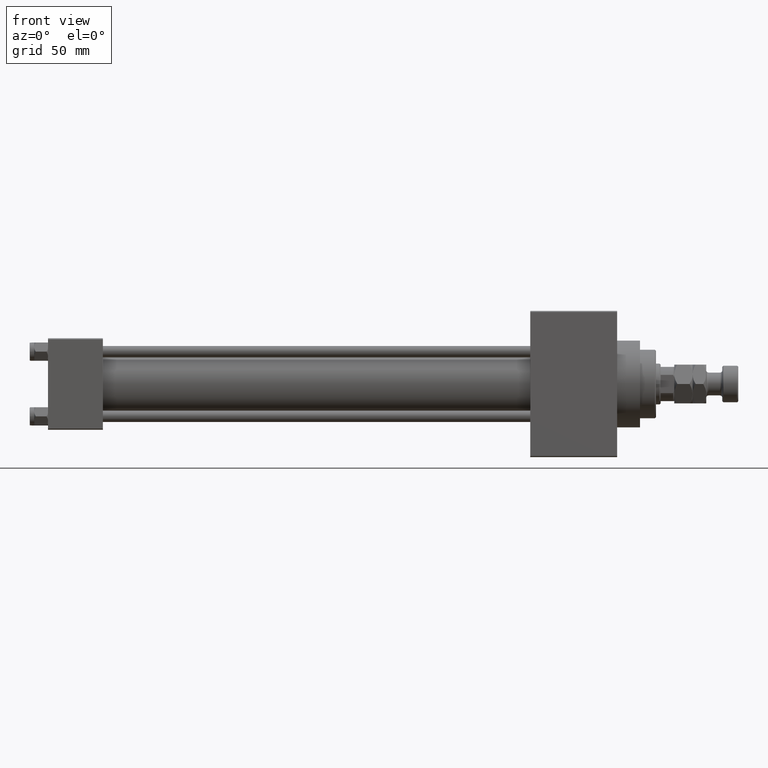
[diagram: clean part render]
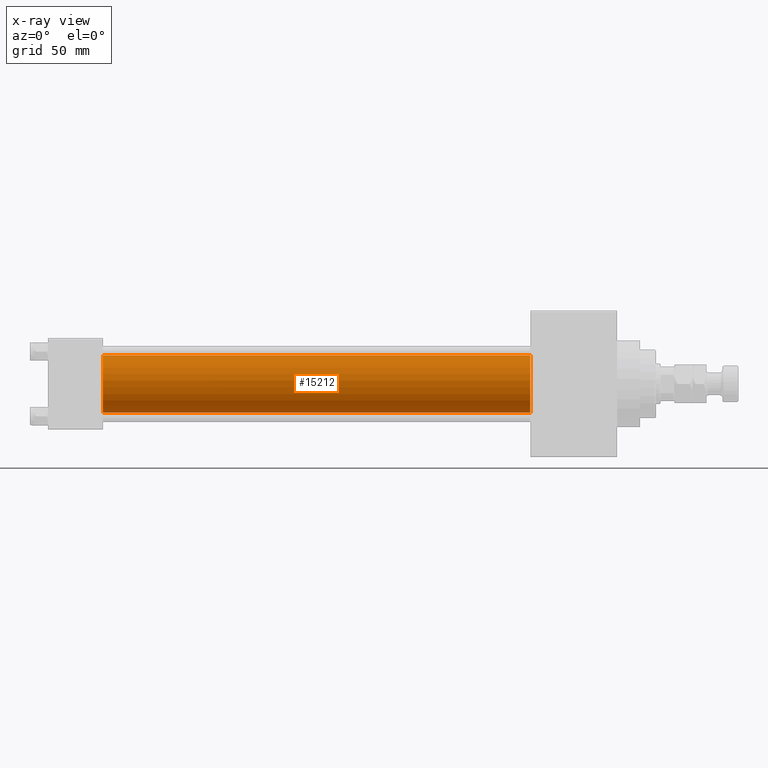
[diagram: x-ray — body ghosted, one internal face saturated and labeled with its STEP entity id]
A machine part, front view, then the same camera in x-ray: the body is ghosted and one INTERNAL B-rep face — a face not visible from any outside direction — is saturated and labeled: STEP entity #15212.
In plain terms, the highlighted cylindrical surface (edge-blend (fillet) strip) has radius 12.5 mm, axis along (-1, -0, -0).
Its self-contained STEP definition (entity closure, byte-faithful):
#244 = DIRECTION ( 'NONE',  ( -1.000000000000000000, -0.000000000000000000, -0.000000000000000000 ) ) ;
#1362 = CIRCLE ( 'NONE', #30035, 12.49999999999999645 ) ;
#1916 = DIRECTION ( 'NONE',  ( 1.000000000000000000, 0.000000000000000000, 0.000000000000000000 ) ) ;
#1955 = LINE ( 'NONE', #44030, #22225 ) ;
#3169 = EDGE_LOOP ( 'NONE', ( #10470, #45985, #36516, #37586 ) ) ;
#3607 = LINE ( 'NONE', #35138, #27765 ) ;
#5006 = CARTESIAN_POINT ( 'NONE',  ( 211.0000000000000000, -2.602085213965210642E-15, 0.000000000000000000 ) ) ;
#7542 = EDGE_CURVE ( 'NONE', #32278, #38748, #1362, .T. ) ;
#10470 = ORIENTED_EDGE ( 'NONE', *, *, #7542, .T. ) ;
#10478 = VERTEX_POINT ( 'NONE', #41136 ) ;
#11362 = DIRECTION ( 'NONE',  ( 0.000000000000000000, 0.000000000000000000, 1.000000000000000000 ) ) ;
#12609 = EDGE_CURVE ( 'NONE', #32278, #39113, #3607, .T. ) ;
#15204 = DIRECTION ( 'NONE',  ( -1.000000000000000000, -0.000000000000000000, -0.000000000000000000 ) ) ;
#15212 = ADVANCED_FACE ( 'NONE', ( #34426 ), #50328, .F. ) ;
#17047 = DIRECTION ( 'NONE',  ( 0.000000000000000000, 0.000000000000000000, -1.000000000000000000 ) ) ;
#20156 = EDGE_CURVE ( 'NONE', #38748, #10478, #1955, .T. ) ;
#22118 = CARTESIAN_POINT ( 'NONE',  ( 211.0000000000000000, -2.602085213965210642E-15, 0.000000000000000000 ) ) ;
#22225 = VECTOR ( 'NONE', #32470, 1000.000000000000000 ) ;
#22955 = AXIS2_PLACEMENT_3D ( 'NONE', #22118, #15204, #11362 ) ;
#27158 = DIRECTION ( 'NONE',  ( 1.000000000000000000, 0.000000000000000000, 0.000000000000000000 ) ) ;
#27652 = CARTESIAN_POINT ( 'NONE',  ( 24.00000000000000000, -2.602085213965210642E-15, 0.000000000000000000 ) ) ;
#27765 = VECTOR ( 'NONE', #244, 1000.000000000000000 ) ;
#30035 = AXIS2_PLACEMENT_3D ( 'NONE', #5006, #1916, #17047 ) ;
#32278 = VERTEX_POINT ( 'NONE', #44329 ) ;
#32470 = DIRECTION ( 'NONE',  ( -1.000000000000000000, -0.000000000000000000, -0.000000000000000000 ) ) ;
#34221 = AXIS2_PLACEMENT_3D ( 'NONE', #27652, #27158, #42806 ) ;
#34426 = FACE_OUTER_BOUND ( 'NONE', #3169, .T. ) ;
#35138 = CARTESIAN_POINT ( 'NONE',  ( 211.0000000000000000, -2.602085213965210642E-15, 12.49999999999999645 ) ) ;
#36516 = ORIENTED_EDGE ( 'NONE', *, *, #40683, .F. ) ;
#37586 = ORIENTED_EDGE ( 'NONE', *, *, #12609, .F. ) ;
#38748 = VERTEX_POINT ( 'NONE', #41421 ) ;
#39046 = CARTESIAN_POINT ( 'NONE',  ( 24.00000000000000000, -2.602085213965210642E-15, 12.49999999999999645 ) ) ;
#39113 = VERTEX_POINT ( 'NONE', #39046 ) ;
#40683 = EDGE_CURVE ( 'NONE', #39113, #10478, #41598, .T. ) ;
#41136 = CARTESIAN_POINT ( 'NONE',  ( 24.00000000000000000, -1.071276715031019515E-15, -12.49999999999999645 ) ) ;
#41421 = CARTESIAN_POINT ( 'NONE',  ( 211.0000000000000000, -1.071276715031019515E-15, -12.49999999999999645 ) ) ;
#41598 = CIRCLE ( 'NONE', #34221, 12.49999999999999645 ) ;
#42806 = DIRECTION ( 'NONE',  ( 0.000000000000000000, 0.000000000000000000, -1.000000000000000000 ) ) ;
#44030 = CARTESIAN_POINT ( 'NONE',  ( 211.0000000000000000, -1.071276715031019515E-15, -12.49999999999999645 ) ) ;
#44329 = CARTESIAN_POINT ( 'NONE',  ( 211.0000000000000000, -2.602085213965210642E-15, 12.49999999999999645 ) ) ;
#45985 = ORIENTED_EDGE ( 'NONE', *, *, #20156, .T. ) ;
#50328 = CYLINDRICAL_SURFACE ( 'NONE', #22955, 12.49999999999999645 ) ;